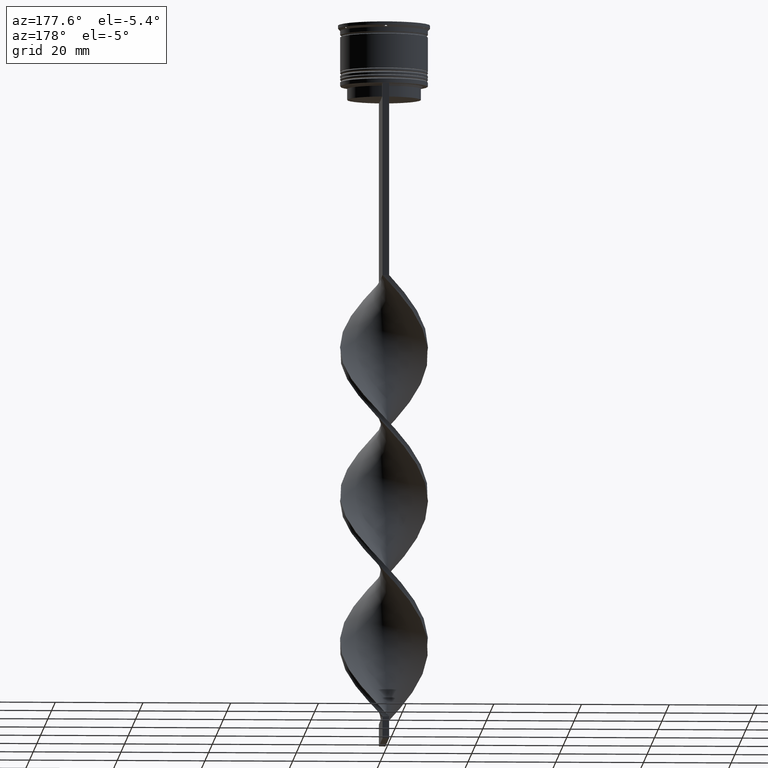
[diagram: clean part render]
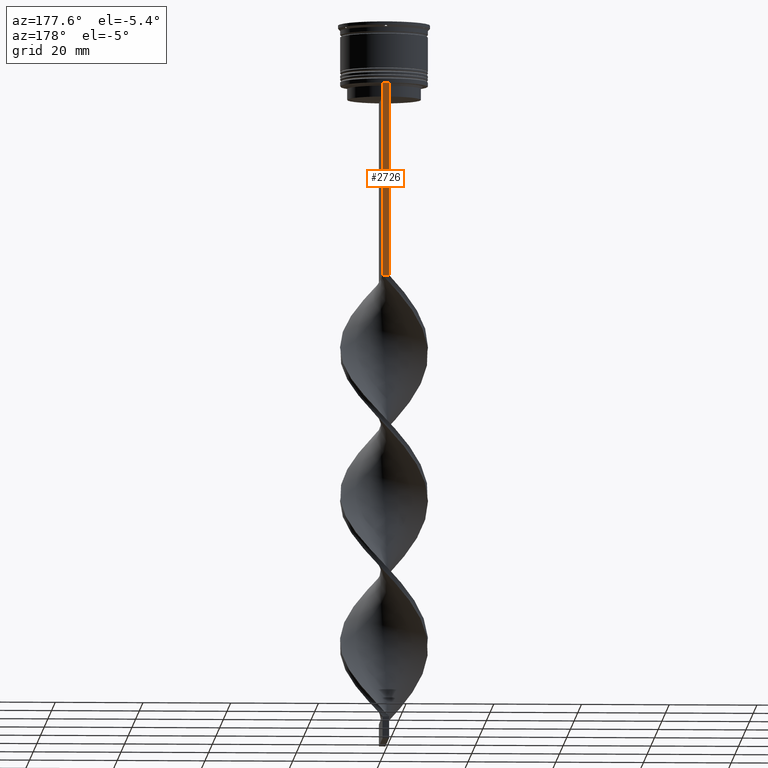
[diagram: same view with one face highlighted and labeled with its STEP entity id]
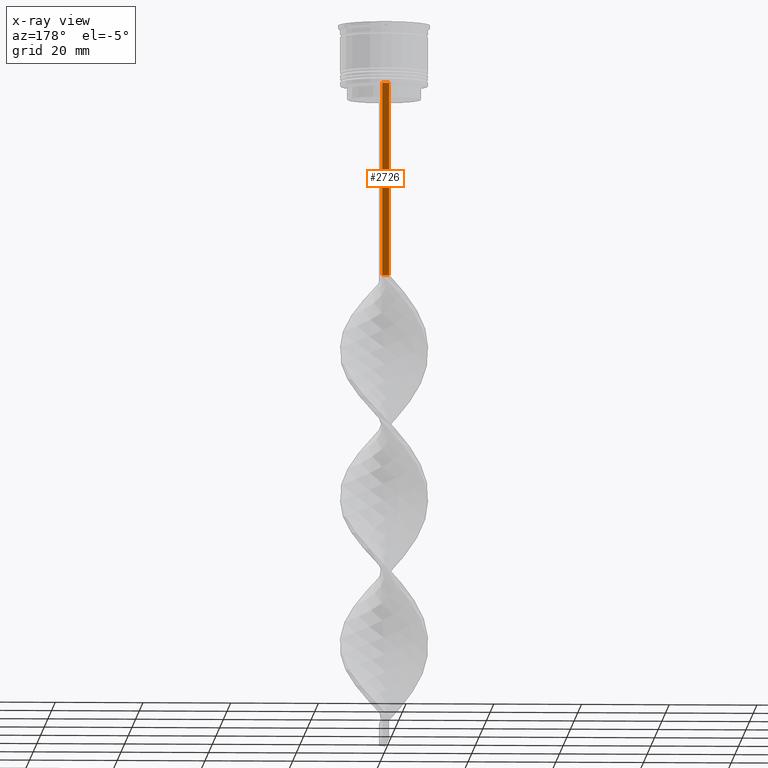
[diagram: x-ray of the same camera — body ghosted, the highlighted face saturated]
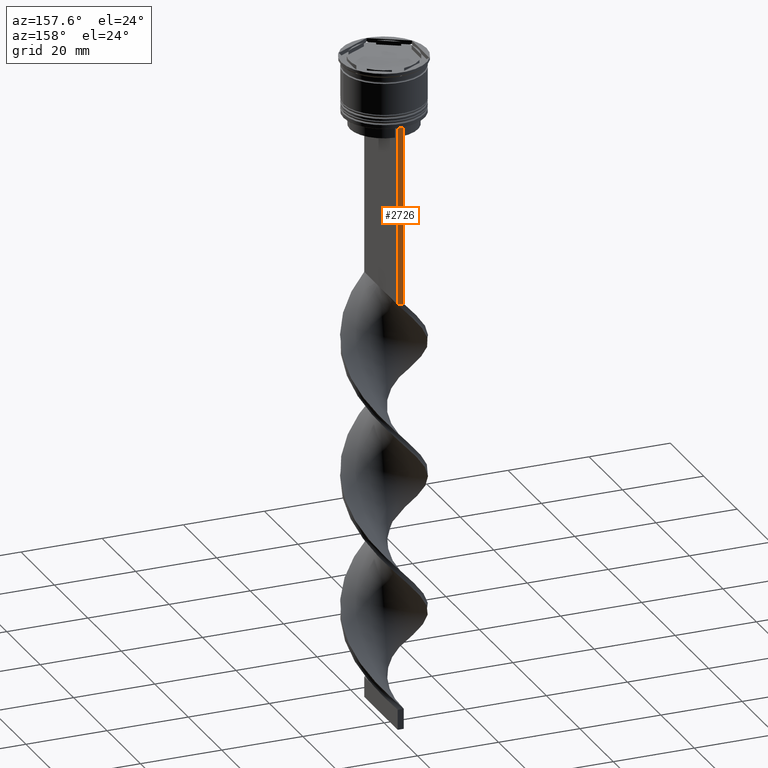
[diagram: same view with one face highlighted and labeled with its STEP entity id]
A machine part, auxiliary view. The second image highlights one B-rep face of the part: STEP entity #2726.
The next image is the same camera in x-ray: the body ghosted, the highlighted face saturated — about 0% of this face is hidden behind the body in this view.
A second angle (auxiliary view) of the same face is appended — the face is thin or edge-on in the first view.
In plain terms, the highlighted planar face has unit normal (0, -1, -0).
Its self-contained STEP definition (entity closure, byte-faithful):
#32 = CARTESIAN_POINT ( 'NONE',  ( 0.7500000000000001110, 9.999999999999998224, -14.00000000000000178 ) ) ;
#86 = ORIENTED_EDGE ( 'NONE', *, *, #3058, .F. ) ;
#247 = CARTESIAN_POINT ( 'NONE',  ( -0.7499999999999997780, 9.999999999999998224, -14.00000000000000178 ) ) ;
#329 = ORIENTED_EDGE ( 'NONE', *, *, #3569, .T. ) ;
#507 = VECTOR ( 'NONE', #3511, 1000.000000000000000 ) ;
#638 = EDGE_LOOP ( 'NONE', ( #86, #2801, #329, #2574 ) ) ;
#739 = VECTOR ( 'NONE', #1870, 1000.000000000000000 ) ;
#1025 = EDGE_CURVE ( 'NONE', #1073, #1999, #3241, .T. ) ;
#1046 = VERTEX_POINT ( 'NONE', #3577 ) ;
#1050 = CARTESIAN_POINT ( 'NONE',  ( 0.7500000000000001110, 9.999999999999998224, 6.056171120131581098 ) ) ;
#1073 = VERTEX_POINT ( 'NONE', #247 ) ;
#1094 = DIRECTION ( 'NONE',  ( 1.000000000000000000, 0.000000000000000000, 0.000000000000000000 ) ) ;
#1114 = CARTESIAN_POINT ( 'NONE',  ( 0.7500000000000001110, 9.999999999999998224, 6.056171120131581098 ) ) ;
#1430 = VECTOR ( 'NONE', #1094, 1000.000000000000000 ) ;
#1692 = CARTESIAN_POINT ( 'NONE',  ( 0.7500000000000001110, 9.999999999999998224, -14.00000000000000178 ) ) ;
#1702 = AXIS2_PLACEMENT_3D ( 'NONE', #1114, #2946, #2671 ) ;
#1777 = EDGE_CURVE ( 'NONE', #1046, #1982, #3659, .T. ) ;
#1870 = DIRECTION ( 'NONE',  ( -1.000000000000000000, 0.000000000000000000, 0.000000000000000000 ) ) ;
#1957 = VECTOR ( 'NONE', #2642, 1000.000000000000000 ) ;
#1982 = VERTEX_POINT ( 'NONE', #2464 ) ;
#1999 = VERTEX_POINT ( 'NONE', #32 ) ;
#2310 = FACE_OUTER_BOUND ( 'NONE', #638, .T. ) ;
#2464 = CARTESIAN_POINT ( 'NONE',  ( -0.7499999999999997780, 9.999999999999998224, -58.00000000000000000 ) ) ;
#2504 = CARTESIAN_POINT ( 'NONE',  ( 0.7500000000000001110, 9.999999999999998224, -58.00000000000000000 ) ) ;
#2574 = ORIENTED_EDGE ( 'NONE', *, *, #1777, .T. ) ;
#2642 = DIRECTION ( 'NONE',  ( 0.000000000000000000, 0.000000000000000000, -1.000000000000000000 ) ) ;
#2671 = DIRECTION ( 'NONE',  ( 0.000000000000000000, 0.000000000000000000, -1.000000000000000000 ) ) ;
#2726 = ADVANCED_FACE ( 'NONE', ( #2310 ), #3502, .F. ) ;
#2801 = ORIENTED_EDGE ( 'NONE', *, *, #1025, .T. ) ;
#2942 = LINE ( 'NONE', #3538, #1957 ) ;
#2946 = DIRECTION ( 'NONE',  ( 0.000000000000000000, -1.000000000000000000, -0.000000000000000000 ) ) ;
#3058 = EDGE_CURVE ( 'NONE', #1073, #1982, #2942, .T. ) ;
#3241 = LINE ( 'NONE', #1692, #1430 ) ;
#3494 = LINE ( 'NONE', #1050, #507 ) ;
#3502 = PLANE ( 'NONE',  #1702 ) ;
#3511 = DIRECTION ( 'NONE',  ( 0.000000000000000000, 0.000000000000000000, -1.000000000000000000 ) ) ;
#3538 = CARTESIAN_POINT ( 'NONE',  ( -0.7499999999999997780, 9.999999999999998224, 6.056171120131581098 ) ) ;
#3569 = EDGE_CURVE ( 'NONE', #1999, #1046, #3494, .T. ) ;
#3577 = CARTESIAN_POINT ( 'NONE',  ( 0.7500000000000002220, 9.999999999999998224, -58.00000000000000000 ) ) ;
#3659 = LINE ( 'NONE', #2504, #739 ) ;